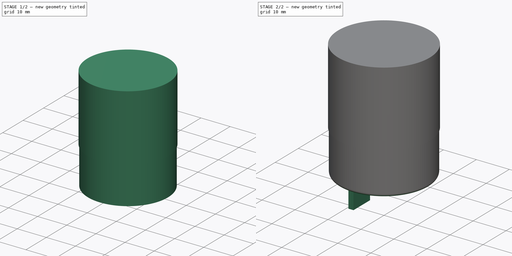
[diagram: build sequence overview — one tinted view per stage of 2, left to right]
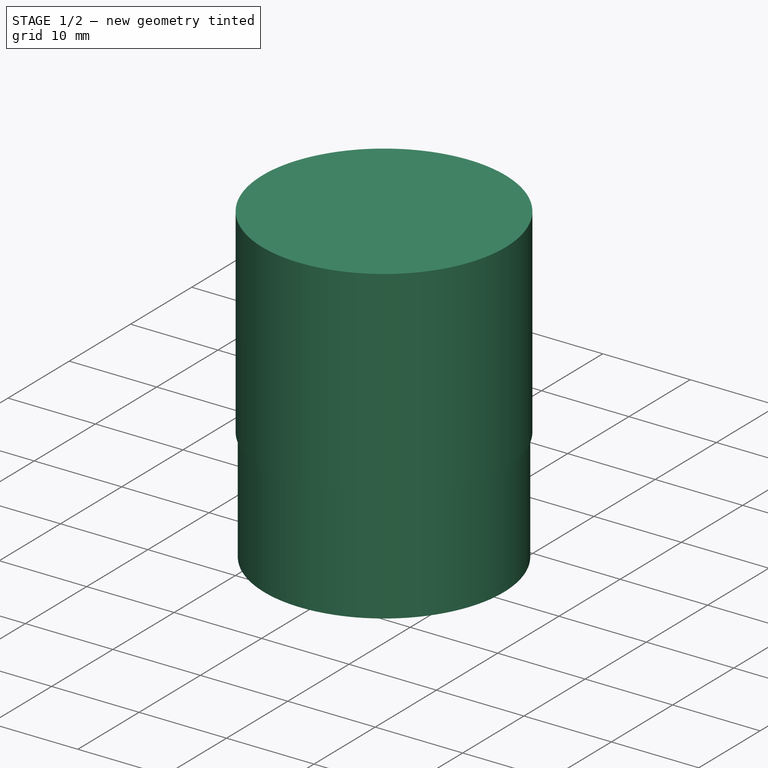
[diagram: stage 1 of 2 — iso view after this stage's code; geometry added in this stage tinted green]
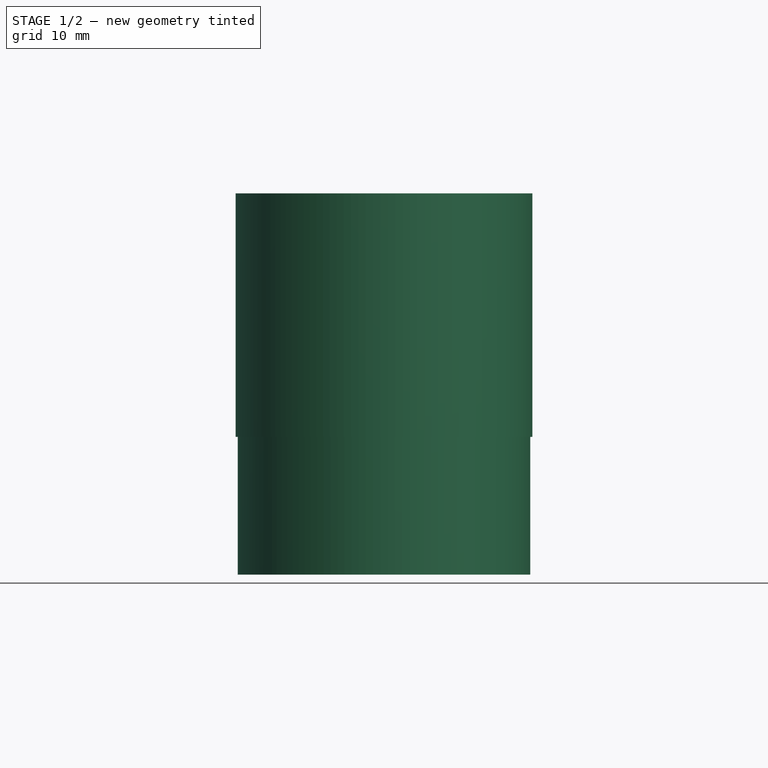
[diagram: stage 1 of 2 — front view after this stage's code; geometry added in this stage tinted green]
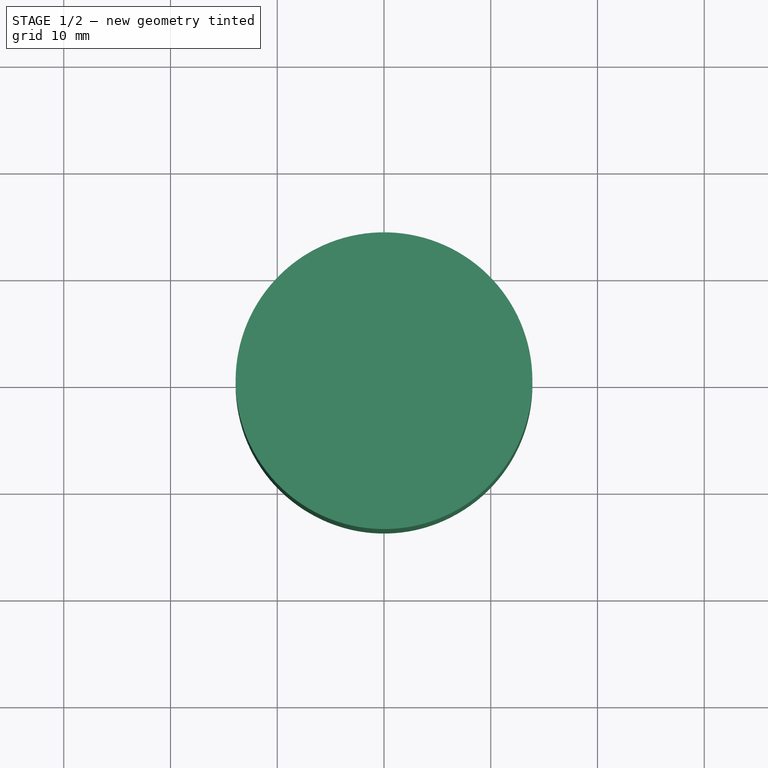
[diagram: stage 1 of 2 — top view after this stage's code; geometry added in this stage tinted green]
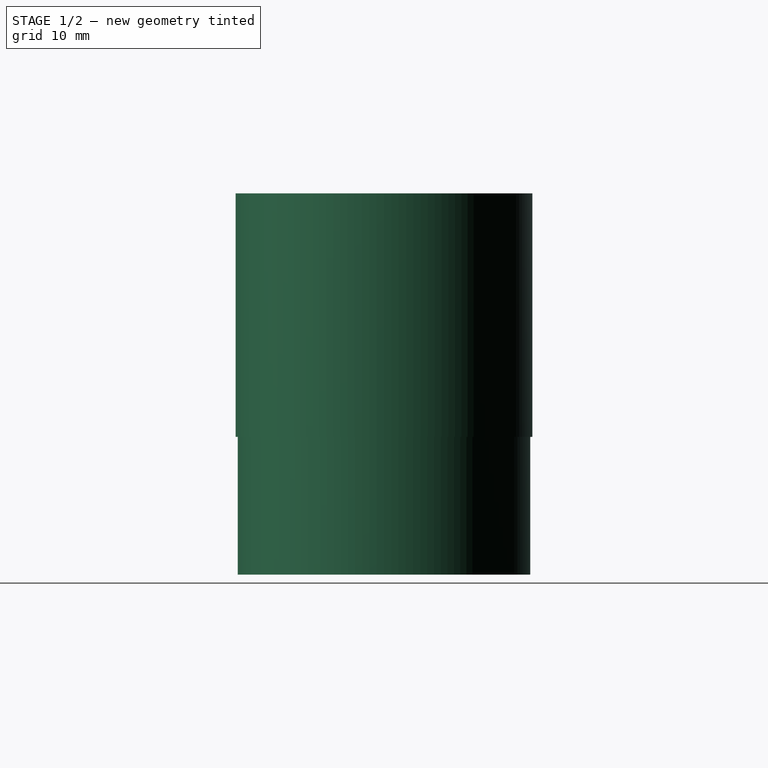
[diagram: stage 1 of 2 — right view after this stage's code; geometry added in this stage tinted green]
FCSTD DOCUMENT  (FreeCAD 0.20R29177 (Git))
Label: moduleUSBCharge
License: All rights reserved
LicenseURL: http://en.wikipedia.org/wiki/All_rights_reserved
objects: Sketcher::SketchObject×3, PartDesign::Pad×3, Spreadsheet::Sheet×1, PartDesign::Fillet×1, PartDesign::Body×1, App::Part×1
note: 12 computed .brp shape members not serialized (recipe doc carries the construction recipe); baked Part::Feature solids carry a one-line shape summary decoded from their .brp

FEATURE [Sketcher::SketchObject] Sketch
  FullyConstrained = true
  MapMode = 5
  Support = -> [XY_Plane001]
  expr: Constraints[1] = <<usbChargeSp>>.diam1
  sketch-geometry (1):
    g0: Circle CenterX=0 CenterY=0 CenterZ=0 NormalX=0 NormalY=0 NormalZ=1 AngleXU=0 Radius=13.9
  constraints (2):
    c: Coincident(g0,g-1)
    c: Diameter(g0) = 27.8
FEATURE [PartDesign::Pad] Pad
  Direction = (0,0,1)
  Length = 22.8
  Length2 = 10
  Profile = -> Sketch
  ReferenceAxis = -> Sketch [N_Axis]
  Reversed = true
  Type = 0
  expr: Length = <<usbChargeSp>>.Haut1
FEATURE [Spreadsheet::Sheet] Spreadsheet  label="usbChargeSp"
  cells = A2=diam1; B2(diam1)=27.8; A3=Haut1; B3(Haut1)=22.8; A4=Diam2; B4(Diam2)=27.4; A5=Haut2; B5(Haut2)=12.9; A6=Diam3; B6(Diam3)=36.75; A7=Haut3; B7(Haut3)=2.61; A8=Diam4; B8(Diam4)=30.36; A9=Haut4; B9(Haut4)=2; A10=cosseEp; B10(cosseEp)=0.76; A11=cosseDist; B11(cosseDist)=9.550000000000001; A12=cosseLarg; B12(cosseLarg)=6.35; A13=cosseHaut; B13(cosseHaut)=10.36
FEATURE [Sketcher::SketchObject] Sketch001
  AttachmentOffset = pos=(0,0,-22.8) rot=(0,0,1;0rad)
  FullyConstrained = true
  MapMode = 5
  Placement = pos=(0,0,-22.8) rot=(0,0,1;0rad)
  Support = -> [XY_Plane001]
  expr: .AttachmentOffset.Base.z = -<<usbChargeSp>>.Haut1
  expr: Constraints[1] = <<usbChargeSp>>.Diam2
  sketch-geometry (1):
    g0: Circle CenterX=0 CenterY=0 CenterZ=0 NormalX=0 NormalY=0 NormalZ=1 AngleXU=0 Radius=13.7
  constraints (2):
    c: Coincident(g0,g-1)
    c: Diameter(g0) = 27.4
FEATURE [PartDesign::Pad] Pad001
  BaseFeature = -> Pad
  Direction = (0,0,1)
  Length = 12.9
  Length2 = 10
  Profile = -> Sketch001
  ReferenceAxis = -> Sketch001 [N_Axis]
  Reversed = true
  Type = 0
  expr: Length = <<usbChargeSp>>.Haut2
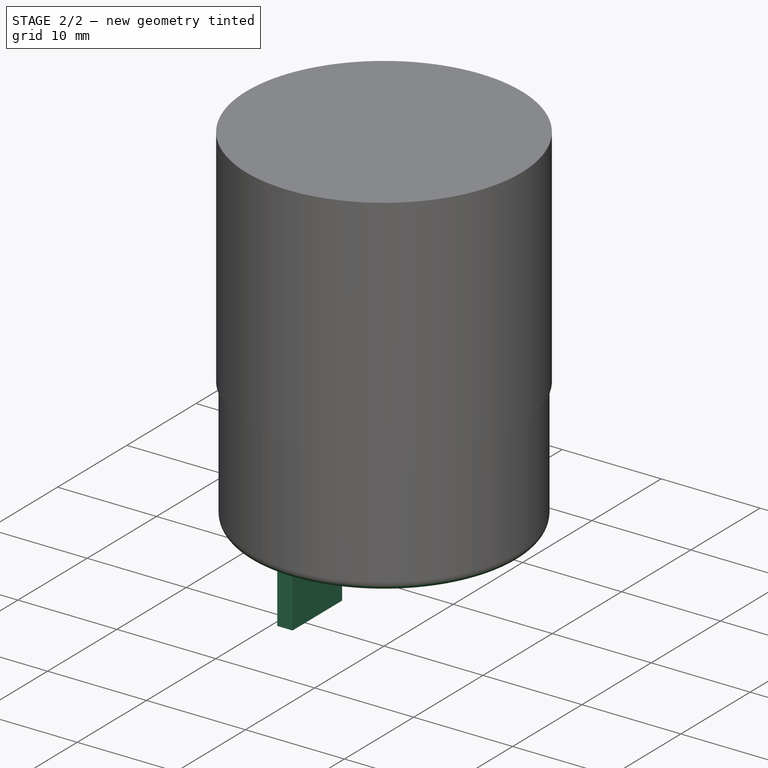
[diagram: stage 2 of 2 — iso view after this stage's code; geometry added in this stage tinted green]
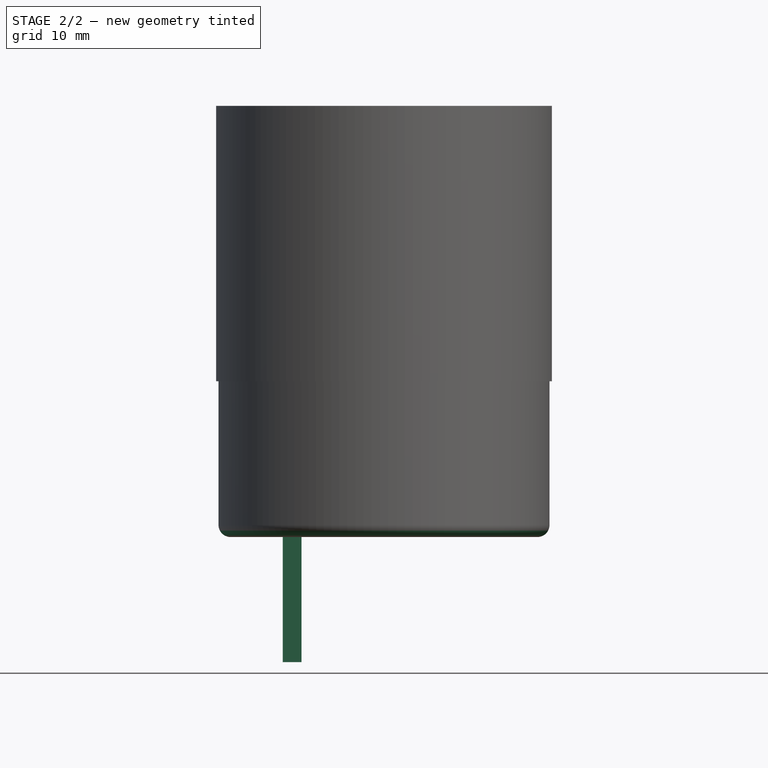
[diagram: stage 2 of 2 — front view after this stage's code; geometry added in this stage tinted green]
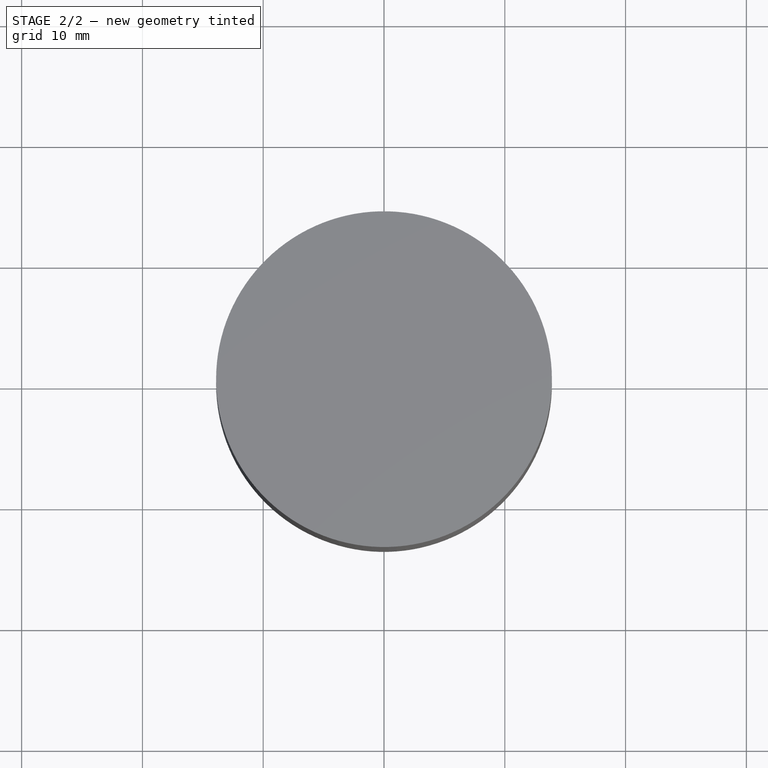
[diagram: stage 2 of 2 — top view after this stage's code; geometry added in this stage tinted green]
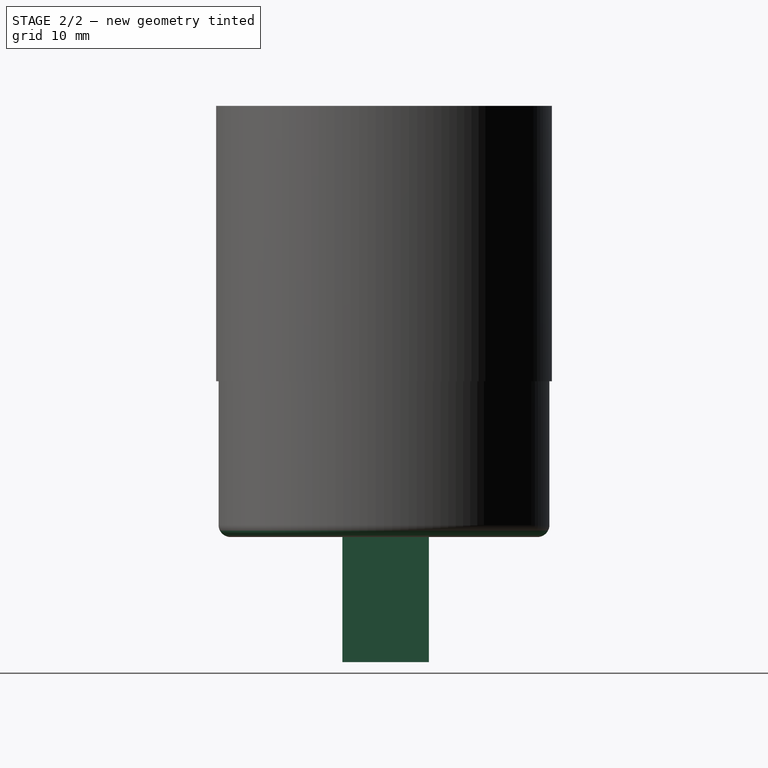
[diagram: stage 2 of 2 — right view after this stage's code; geometry added in this stage tinted green]
FEATURE [PartDesign::Fillet] Fillet
  Base = -> Pad001 [Edge6]
  BaseFeature = -> Pad001
  Radius = 1
  SupportTransform = false
  UseAllEdges = false
FEATURE [Sketcher::SketchObject] Sketch002
  FullyConstrained = false
  MapMode = 5
  Placement = pos=(0,0,-35.7) rot=(1,0,0;3.14159rad)
  Support = -> [Fillet]
  sketch-geometry (4):
    g0: LineSegment StartX=-8.383 StartY=3.44126 StartZ=0 EndX=-6.83354 EndY=3.44126 EndZ=0
    g1: LineSegment StartX=-6.83354 StartY=3.44126 StartZ=0 EndX=-6.83354 EndY=-3.71011 EndZ=0
    g2: LineSegment StartX=-6.83354 StartY=-3.71011 StartZ=0 EndX=-8.383 EndY=-3.71011 EndZ=0
    g3: LineSegment StartX=-8.383 StartY=-3.71011 StartZ=0 EndX=-8.383 EndY=3.44126 EndZ=0
  constraints (8):
    c: Coincident(g0,g1)
    c: Coincident(g1,g2)
    c: Coincident(g2,g3)
    c: Coincident(g3,g0)
    c: Horizontal(g0)
    c: Horizontal(g2)
    c: Vertical(g1)
    c: Vertical(g3)
FEATURE [PartDesign::Pad] Pad002
  BaseFeature = -> Fillet
  Direction = (0,0,-1)
  Length = 10.36
  Length2 = 10
  Profile = -> Sketch002
  ReferenceAxis = -> Sketch002 [N_Axis]
  Type = 0
  expr: Length = <<usbChargeSp>>.cosseHaut
FEATURE [PartDesign::Body] Body
  Group = -> [Sketch,Pad,Sketch001,Pad001,Fillet,Sketch002,Pad002]
  Origin = -> Origin001
  Tip = -> Pad002
FEATURE [App::Part] Part
  Group = -> [Body,Spreadsheet]
  Origin = -> Origin
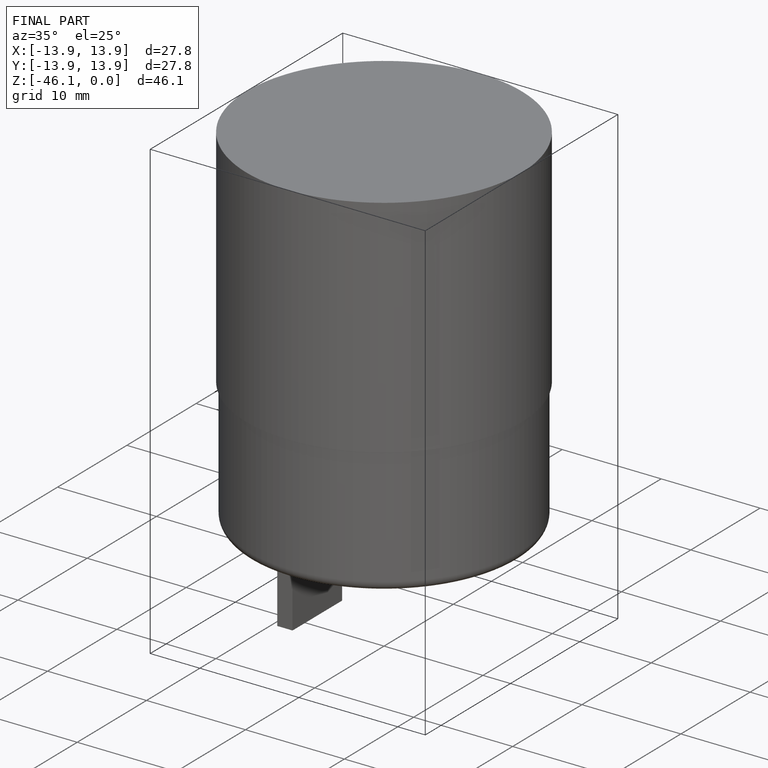
[diagram: finished part — iso view with bounding-box wireframe]
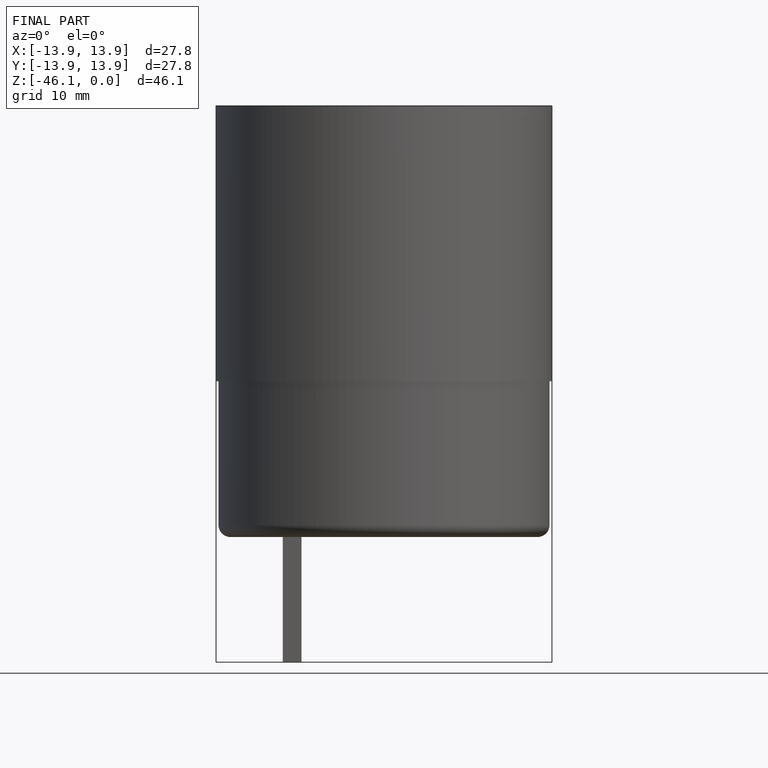
[diagram: finished part — front view with bounding-box wireframe]
